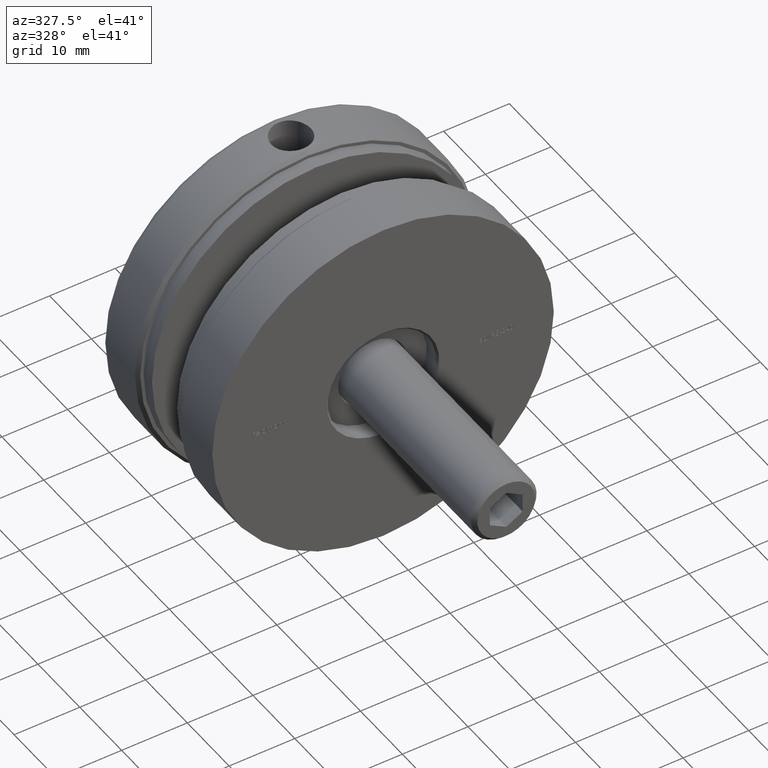
[diagram: clean part render]
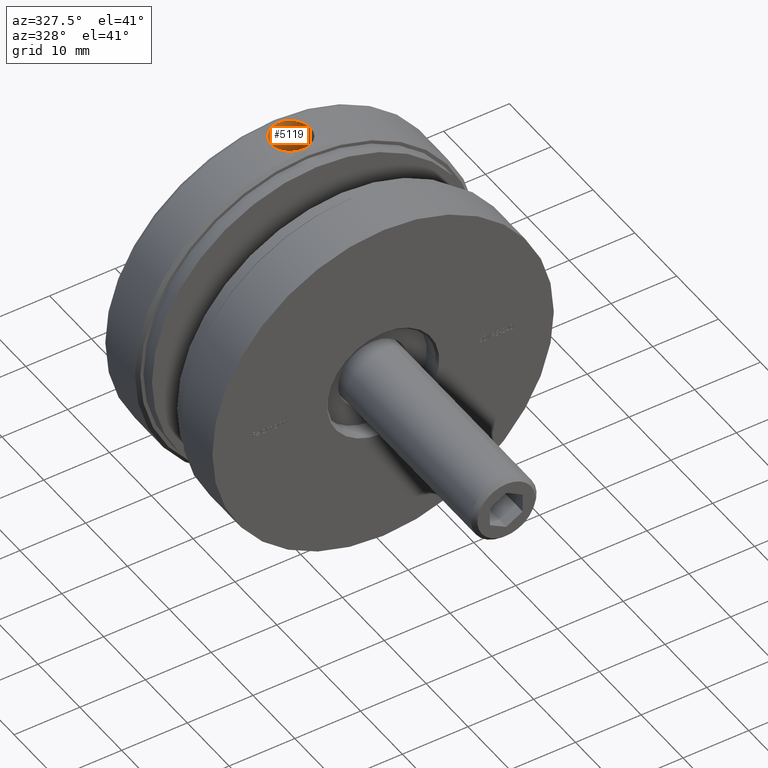
[diagram: same view with one face highlighted and labeled with its STEP entity id]
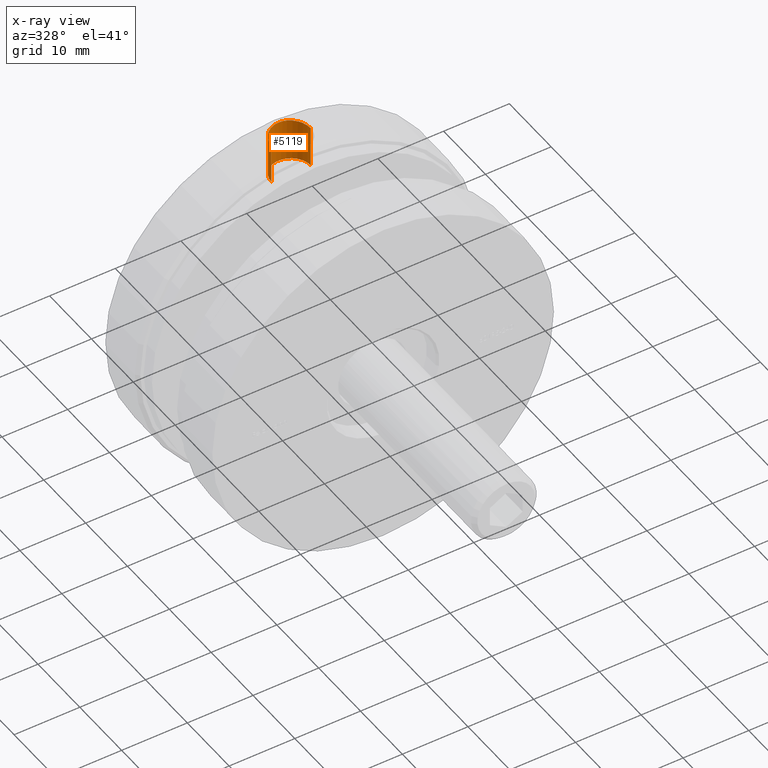
[diagram: x-ray of the same camera — body ghosted, the highlighted face saturated]
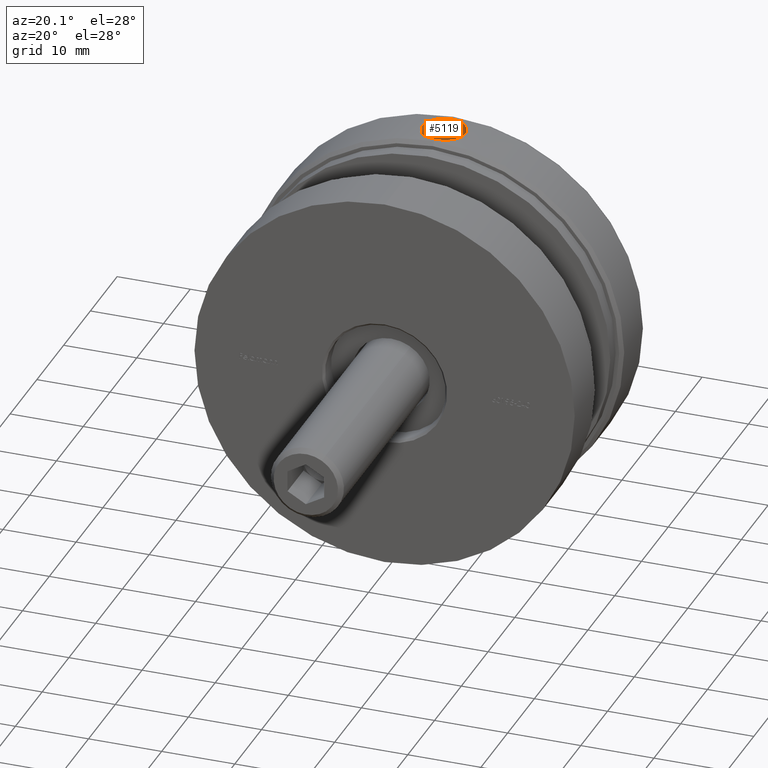
[diagram: same view with one face highlighted and labeled with its STEP entity id]
A machine part, auxiliary view. The second image highlights one B-rep face of the part: STEP entity #5119.
The next image is the same camera in x-ray: the body ghosted, the highlighted face saturated — about 0% of this face is hidden behind the body in this view.
A second angle (auxiliary view) of the same face is appended — the face is thin or edge-on in the first view.
In plain terms, the highlighted cylindrical surface (edge-blend (fillet) strip) has radius 3 mm, axis along (0, 0, 1).
Its self-contained STEP definition (entity closure, byte-faithful):
#405 = EDGE_CURVE ( 'NONE', #8988, #4336, #7215, .T. ) ;
#493 = CARTESIAN_POINT ( 'NONE',  ( 2.846350212475535990, 12.96797298770609785, 25.84383942274999768 ) ) ;
#909 = DIRECTION ( 'NONE',  ( -0.000000000000000000, -0.000000000000000000, 1.000000000000000000 ) ) ;
#1012 = DIRECTION ( 'NONE',  ( 1.000000000000000000, 0.000000000000000000, 0.000000000000000000 ) ) ;
#1316 = CARTESIAN_POINT ( 'NONE',  ( -2.999999999999996003, 12.00000000000000533, 19.50000000000000000 ) ) ;
#1372 = CARTESIAN_POINT ( 'NONE',  ( 2.999999999999996003, 12.00000000000000533, 19.50000000000000000 ) ) ;
#1519 = CARTESIAN_POINT ( 'NONE',  ( 2.999999999999993339, 12.00000000000000533, 25.82634314028991795 ) ) ;
#1551 = CARTESIAN_POINT ( 'NONE',  ( -2.261404795797202549, 13.98121830335463223, 25.90184869792000200 ) ) ;
#1605 = CARTESIAN_POINT ( 'NONE',  ( -2.903605900577574950, 12.77945057606018509, 25.83738696666054935 ) ) ;
#1658 = CARTESIAN_POINT ( 'NONE',  ( 3.184081717591029370E-15, 15.00000000000000000, 26.00000000000000000 ) ) ;
#1677 = CARTESIAN_POINT ( 'NONE',  ( 2.603396420593516503, 13.50358548941793302, 25.86956322459198532 ) ) ;
#1911 = B_SPLINE_CURVE_WITH_KNOTS ( 'NONE', 3,
 ( #11898, #4263, #13189, #11846, #493, #12054, #1677, #9341, #5554, #11955, #3076, #2970, #14516, #15730, #4431, #10571, #7989, #6832 ),
 .UNSPECIFIED., .F., .F.,
 ( 4, 2, 2, 2, 2, 2, 2, 2, 4 ),
 ( 0.000000000000000000, 0.0005868355249938606282, 0.001173671049987721256, 0.001760506574981581885, 0.002347342099975442513, 0.002934177624969303358, 0.003521013149963163769, 0.004107848674957024181, 0.004694684199950885026 ),
 .UNSPECIFIED. ) ;
#2057 = EDGE_CURVE ( 'NONE', #13078, #8916, #13142, .T. ) ;
#2384 = CARTESIAN_POINT ( 'NONE',  ( 2.315716780447530777E-17, 12.00000000000000533, 19.50000000000000000 ) ) ;
#2940 = CARTESIAN_POINT ( 'NONE',  ( 3.184081717591029370E-15, 15.00000000000000000, 26.00000000000000000 ) ) ;
#2970 = CARTESIAN_POINT ( 'NONE',  ( 1.503076440739181230, 14.60378417458819023, 25.95703721471270597 ) ) ;
#3076 = CARTESIAN_POINT ( 'NONE',  ( 1.831153657416624725, 14.38449304831672748, 25.93595758856061551 ) ) ;
#3223 = EDGE_CURVE ( 'NONE', #8916, #4336, #11517, .T. ) ;
#3972 = CARTESIAN_POINT ( 'NONE',  ( 2.315716780447530777E-17, 12.00000000000000533, 26.00000000000000000 ) ) ;
#4146 = CARTESIAN_POINT ( 'NONE',  ( -1.829982341864351492, 14.38523003212618789, 25.93602978369471757 ) ) ;
#4263 = CARTESIAN_POINT ( 'NONE',  ( 2.999999999999992895, 12.19844124226903226, 25.82634314028991440 ) ) ;
#4336 = VERTEX_POINT ( 'NONE', #7804 ) ;
#4431 = CARTESIAN_POINT ( 'NONE',  ( 0.7781989914611555648, 14.90403505178116106, 25.98907381547030582 ) ) ;
#4520 = VECTOR ( 'NONE', #909, 1000.000000000000000 ) ;
#4838 = DIRECTION ( 'NONE',  ( -0.000000000000000000, -0.000000000000000000, 1.000000000000000000 ) ) ;
#5119 = ADVANCED_FACE ( 'NONE', ( #8141 ), #5394, .F. ) ;
#5394 = CYLINDRICAL_SURFACE ( 'NONE', #6096, 2.999999999999993339 ) ;
#5438 = CARTESIAN_POINT ( 'NONE',  ( -2.602466775337946014, 13.50509704579727277, 25.86965524079897349 ) ) ;
#5554 = CARTESIAN_POINT ( 'NONE',  ( 2.258867567054962500, 13.98387761084649838, 25.90206143363497304 ) ) ;
#6096 = AXIS2_PLACEMENT_3D ( 'NONE', #3972, #14257, #6592 ) ;
#6160 = ORIENTED_EDGE ( 'NONE', *, *, #12710, .T. ) ;
#6592 = DIRECTION ( 'NONE',  ( 1.000000000000000000, 0.000000000000000000, 0.000000000000000000 ) ) ;
#6630 = VERTEX_POINT ( 'NONE', #1519 ) ;
#6817 = CARTESIAN_POINT ( 'NONE',  ( -1.329843681538970257, 14.69632680814940251, 25.96660508037033566 ) ) ;
#6832 = CARTESIAN_POINT ( 'NONE',  ( 3.184081717591029370E-15, 15.00000000000000000, 26.00000000000000000 ) ) ;
#7215 = B_SPLINE_CURVE_WITH_KNOTS ( 'NONE', 3,
 ( #1658, #7972, #14333, #13060, #9261, #6817, #15661, #4146, #7919, #1551, #10494, #5438, #10548, #15708, #1605, #15910, #13341, #15861 ),
 .UNSPECIFIED., .F., .F.,
 ( 4, 2, 2, 2, 2, 2, 2, 2, 4 ),
 ( 0.004694684199950885026, 0.005281245962513980360, 0.005867807725077075695, 0.006454369487640171030, 0.007040931250203267232, 0.007627493012766363434, 0.008214054775329458769, 0.008800616537892554103, 0.009387178300455649438 ),
 .UNSPECIFIED. ) ;
#7705 = EDGE_LOOP ( 'NONE', ( #16041, #16574, #14681, #6160, #8906 ) ) ;
#7804 = CARTESIAN_POINT ( 'NONE',  ( -2.999999999999993339, 12.00000000000000533, 25.82634314028991795 ) ) ;
#7900 = LINE ( 'NONE', #12365, #4520 ) ;
#7919 = CARTESIAN_POINT ( 'NONE',  ( -1.981502330215358931, 14.26115592813789057, 25.92476356952453287 ) ) ;
#7972 = CARTESIAN_POINT ( 'NONE',  ( -0.1958109377290239150, 15.00000000000000355, 26.00000000000000711 ) ) ;
#7989 = CARTESIAN_POINT ( 'NONE',  ( 0.1959023273860177328, 15.00000000000000178, 26.00000000000000355 ) ) ;
#8098 = VECTOR ( 'NONE', #4838, 1000.000000000000000 ) ;
#8141 = FACE_OUTER_BOUND ( 'NONE', #7705, .T. ) ;
#8733 = CARTESIAN_POINT ( 'NONE',  ( -2.999999999999993339, 12.00000000000000533, 26.00000000000000000 ) ) ;
#8906 = ORIENTED_EDGE ( 'NONE', *, *, #405, .T. ) ;
#8916 = VERTEX_POINT ( 'NONE', #1316 ) ;
#8988 = VERTEX_POINT ( 'NONE', #2940 ) ;
#9261 = CARTESIAN_POINT ( 'NONE',  ( -0.9665303916001974915, 14.84683710032510007, 25.98266504074123517 ) ) ;
#9341 = CARTESIAN_POINT ( 'NONE',  ( 2.385551216946786734, 13.82964139603120302, 25.89056043706364107 ) ) ;
#10488 = AXIS2_PLACEMENT_3D ( 'NONE', #2384, #14083, #1012 ) ;
#10494 = CARTESIAN_POINT ( 'NONE',  ( -2.385338712747459233, 13.82983869766541218, 25.89057849527513611 ) ) ;
#10548 = CARTESIAN_POINT ( 'NONE',  ( -2.696416611793716278, 13.32965299605063159, 25.85991224079242201 ) ) ;
#10571 = CARTESIAN_POINT ( 'NONE',  ( 0.3907329643440589639, 14.98099664589876134, 25.99778604433174323 ) ) ;
#11186 = EDGE_CURVE ( 'NONE', #13078, #6630, #7900, .T. ) ;
#11517 = LINE ( 'NONE', #8733, #8098 ) ;
#11846 = CARTESIAN_POINT ( 'NONE',  ( 2.904149876954387199, 12.77729648144730490, 25.83732551792852661 ) ) ;
#11898 = CARTESIAN_POINT ( 'NONE',  ( 2.999999999999993339, 12.00000000000000533, 25.82634314028991795 ) ) ;
#11955 = CARTESIAN_POINT ( 'NONE',  ( 1.982165393545807675, 14.26037019378247095, 25.92470423264115809 ) ) ;
#12054 = CARTESIAN_POINT ( 'NONE',  ( 2.695613632603215848, 13.33129575253280841, 25.85999638021378644 ) ) ;
#12365 = CARTESIAN_POINT ( 'NONE',  ( 2.999999999999993339, 12.00000000000000533, 26.00000000000000000 ) ) ;
#12710 = EDGE_CURVE ( 'NONE', #6630, #8988, #1911, .T. ) ;
#13060 = CARTESIAN_POINT ( 'NONE',  ( -0.7794948647253729934, 14.90359690896376144, 25.98902498854664245 ) ) ;
#13078 = VERTEX_POINT ( 'NONE', #1372 ) ;
#13142 = CIRCLE ( 'NONE', #10488, 2.999999999999996003 ) ;
#13189 = CARTESIAN_POINT ( 'NONE',  ( 2.980504814974855421, 12.39353192474849408, 25.82862883459219105 ) ) ;
#13341 = CARTESIAN_POINT ( 'NONE',  ( -2.999999999999994227, 12.19583110629071676, 25.82634314028992506 ) ) ;
#14083 = DIRECTION ( 'NONE',  ( -0.000000000000000000, -0.000000000000000000, 1.000000000000000000 ) ) ;
#14257 = DIRECTION ( 'NONE',  ( -0.000000000000000000, -0.000000000000000000, 1.000000000000000000 ) ) ;
#14333 = CARTESIAN_POINT ( 'NONE',  ( -0.3947184794488016735, 14.98038329344713482, 25.99771585007838937 ) ) ;
#14516 = CARTESIAN_POINT ( 'NONE',  ( 1.328629764600067098, 14.69683778959806020, 25.96665947883300518 ) ) ;
#14681 = ORIENTED_EDGE ( 'NONE', *, *, #11186, .T. ) ;
#15661 = CARTESIAN_POINT ( 'NONE',  ( -1.505221535995645121, 14.60239616608750701, 25.95690244308456585 ) ) ;
#15708 = CARTESIAN_POINT ( 'NONE',  ( -2.846863984101782208, 12.96643938779813965, 25.84378240702910290 ) ) ;
#15730 = CARTESIAN_POINT ( 'NONE',  ( 0.9675322356152917802, 14.84641396986289230, 25.98262001635120910 ) ) ;
#15861 = CARTESIAN_POINT ( 'NONE',  ( -2.999999999999993339, 12.00000000000000533, 25.82634314028991795 ) ) ;
#15910 = CARTESIAN_POINT ( 'NONE',  ( -2.980375201964898135, 12.39475825754775684, 25.82864410197217353 ) ) ;
#16041 = ORIENTED_EDGE ( 'NONE', *, *, #3223, .F. ) ;
#16574 = ORIENTED_EDGE ( 'NONE', *, *, #2057, .F. ) ;